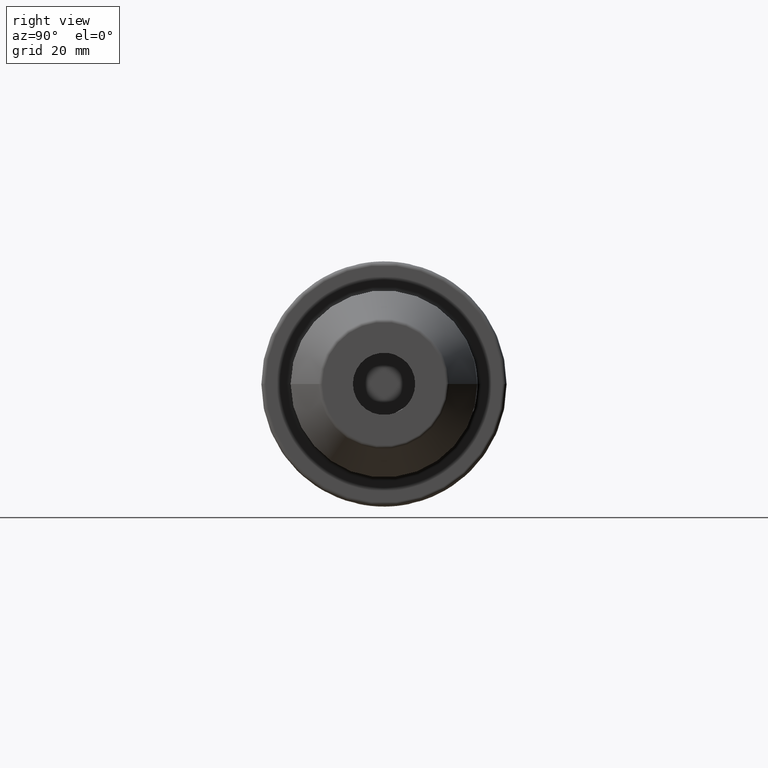
[diagram: clean part render]
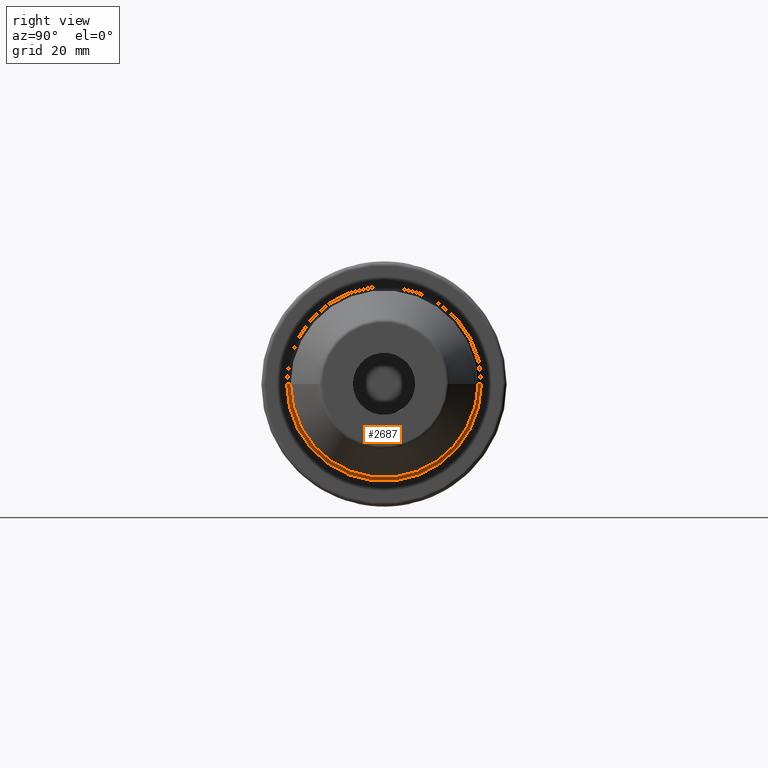
[diagram: same view with one face highlighted and labeled with its STEP entity id]
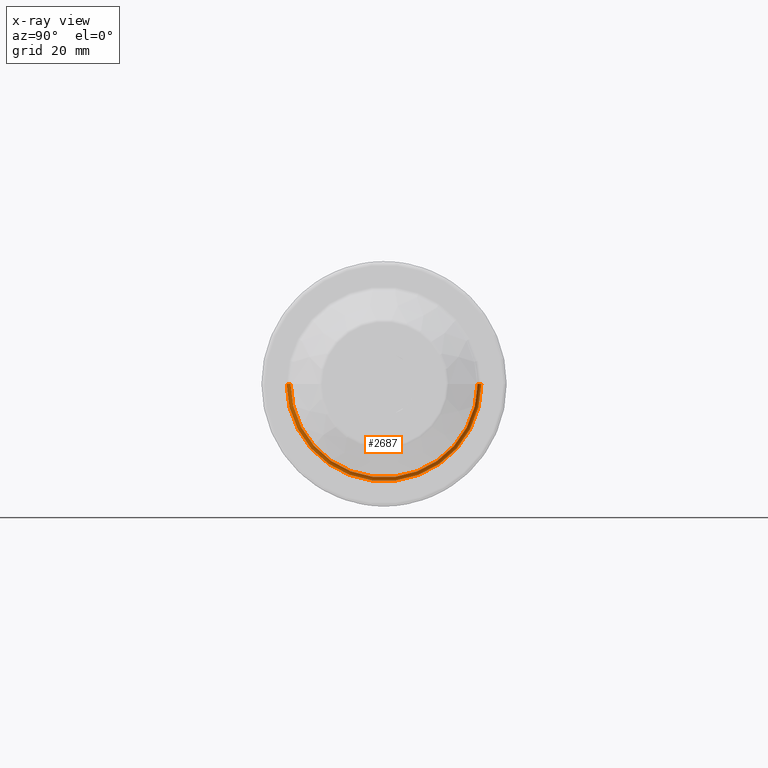
[diagram: x-ray of the same camera — body ghosted, the highlighted face saturated]
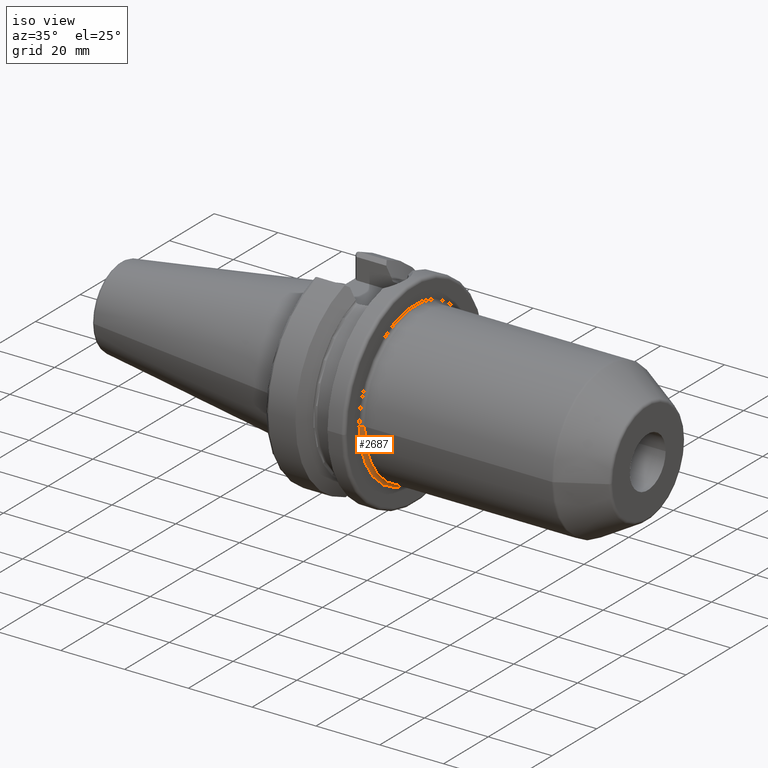
[diagram: same view with one face highlighted and labeled with its STEP entity id]
A machine part, right view. The second image highlights one B-rep face of the part: STEP entity #2687.
The next image is the same camera in x-ray: the body ghosted, the highlighted face saturated — about 1% of this face is hidden behind the body in this view.
A second angle (iso view) of the same face is appended — the face is thin or edge-on in the first view.
In plain terms, the highlighted toroidal blend (fillet) surface has major radius 25 mm and minor (blend) radius 1 mm.
Its self-contained STEP definition (entity closure, byte-faithful):
#836=CARTESIAN_POINT('',(2.7E1,0.E0,0.E0));
#837=DIRECTION('',(1.E0,0.E0,0.E0));
#838=DIRECTION('',(0.E0,-1.E0,0.E0));
#839=AXIS2_PLACEMENT_3D('',#836,#837,#838);
#846=CARTESIAN_POINT('',(2.8E1,-2.5E1,3.833044992518E-14));
#847=DIRECTION('',(0.E0,0.E0,-1.E0));
#848=DIRECTION('',(-1.E0,4.618527782441E-14,0.E0));
#849=AXIS2_PLACEMENT_3D('',#846,#847,#848);
#851=CARTESIAN_POINT('',(2.8E1,2.5E1,0.E0));
#852=DIRECTION('',(0.E0,0.E0,1.E0));
#853=DIRECTION('',(-1.E0,-4.618527782441E-14,0.E0));
#854=AXIS2_PLACEMENT_3D('',#851,#852,#853);
#935=CARTESIAN_POINT('',(2.8E1,0.E0,0.E0));
#936=DIRECTION('',(1.E0,0.E0,0.E0));
#937=DIRECTION('',(0.E0,-1.E0,0.E0));
#938=AXIS2_PLACEMENT_3D('',#935,#936,#937);
#1549=CARTESIAN_POINT('',(2.7E1,-2.5E1,1.608122649677E-14));
#1550=CARTESIAN_POINT('',(2.7E1,2.5E1,0.E0));
#1551=VERTEX_POINT('',#1549);
#1552=VERTEX_POINT('',#1550);
#1553=CARTESIAN_POINT('',(2.8E1,-2.4E1,0.E0));
#1554=CARTESIAN_POINT('',(2.8E1,2.4E1,0.E0));
#1555=VERTEX_POINT('',#1553);
#1556=VERTEX_POINT('',#1554);
#2673=CARTESIAN_POINT('',(2.8E1,0.E0,0.E0));
#2674=DIRECTION('',(1.E0,0.E0,0.E0));
#2675=DIRECTION('',(0.E0,-9.999794752457E-1,6.406956165906E-3));
#2676=AXIS2_PLACEMENT_3D('',#2673,#2674,#2675);
#2677=TOROIDAL_SURFACE('',#2676,2.5E1,1.E0);
#2678=ORIENTED_EDGE('',*,*,#2666,.F.);
#2680=ORIENTED_EDGE('',*,*,#2679,.T.);
#2682=ORIENTED_EDGE('',*,*,#2681,.T.);
#2684=ORIENTED_EDGE('',*,*,#2683,.F.);
#2685=EDGE_LOOP('',(#2678,#2680,#2682,#2684));
#2686=FACE_OUTER_BOUND('',#2685,.F.);
#2687=ADVANCED_FACE('',(#2686),#2677,.F.);
#840=CIRCLE('',#839,2.5E1);
#850=CIRCLE('',#849,1.E0);
#855=CIRCLE('',#854,1.E0);
#939=CIRCLE('',#938,2.4E1);
#2666=EDGE_CURVE('',#1551,#1552,#840,.T.);
#2679=EDGE_CURVE('',#1551,#1555,#850,.T.);
#2681=EDGE_CURVE('',#1555,#1556,#939,.T.);
#2683=EDGE_CURVE('',#1552,#1556,#855,.T.);